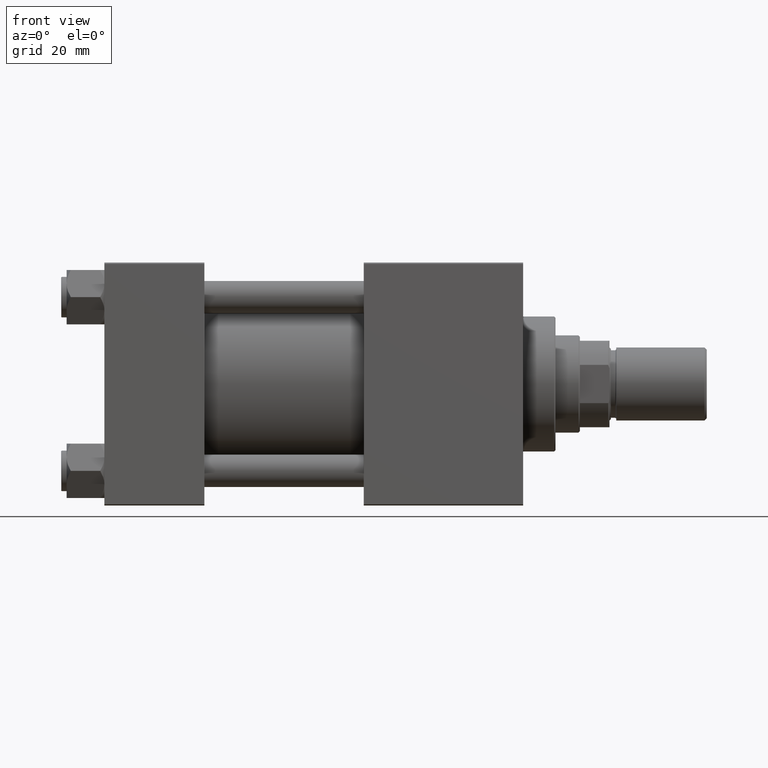
[diagram: clean part render]
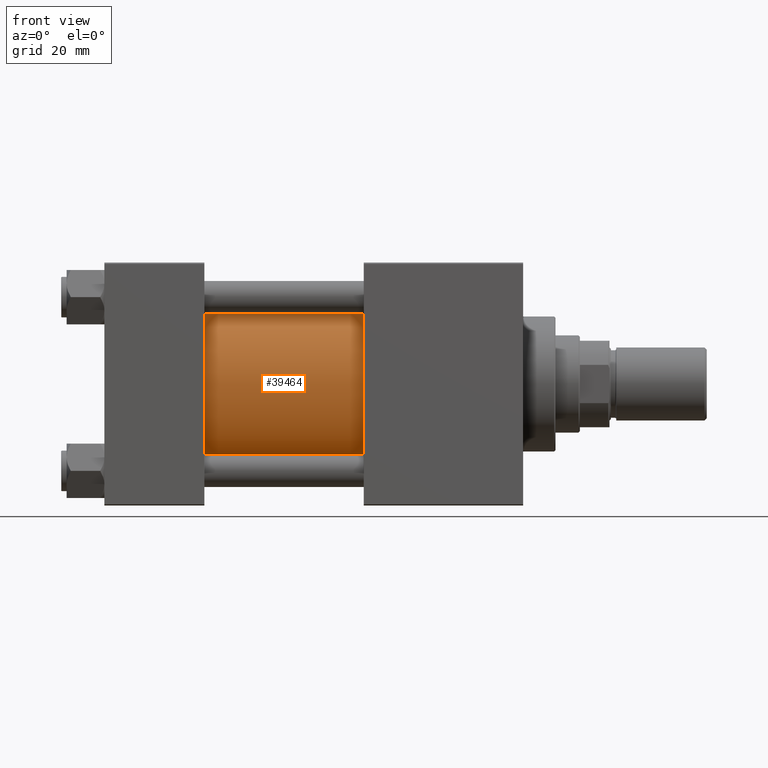
[diagram: same view with one face highlighted and labeled with its STEP entity id]
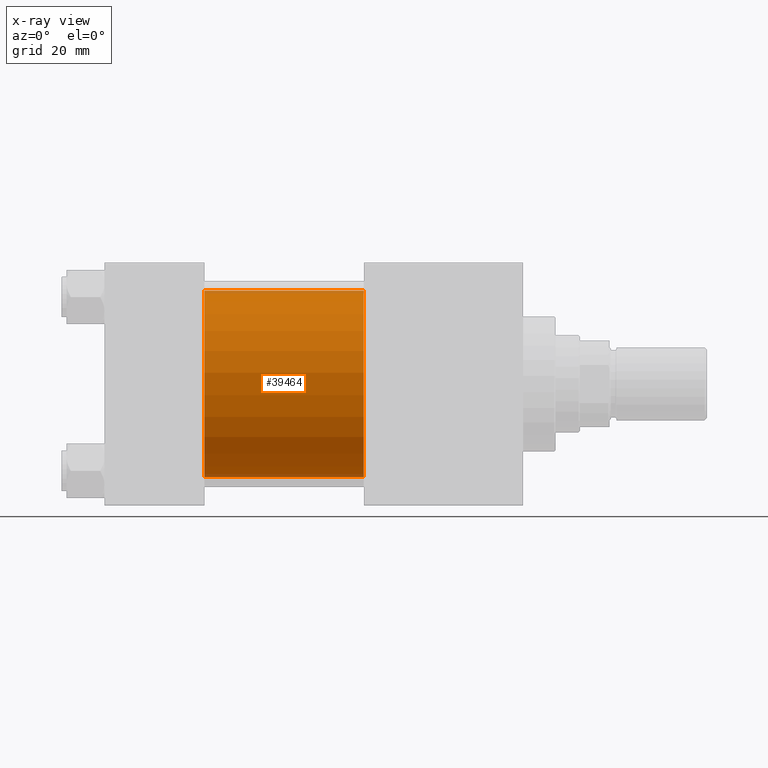
[diagram: x-ray of the same camera — body ghosted, the highlighted face saturated]
A machine part, front view. The second image highlights one B-rep face of the part: STEP entity #39464.
The next image is the same camera in x-ray: the body ghosted, the highlighted face saturated — about 3% of this face is hidden behind the body in this view.
In plain terms, the highlighted cylindrical surface (partial cylindrical patch) has radius 34.5 mm, axis along (-1, -0, -0).
Its self-contained STEP definition (entity closure, byte-faithful):
#275 = CARTESIAN_POINT ( 'NONE',  ( 37.00000000000000000, 1.622946243093158675E-15, -34.50000000000000000 ) ) ;
#1267 = DIRECTION ( 'NONE',  ( 0.000000000000000000, 0.000000000000000000, 1.000000000000000000 ) ) ;
#3224 = VECTOR ( 'NONE', #19896, 1000.000000000000000 ) ;
#6293 = DIRECTION ( 'NONE',  ( -1.000000000000000000, -0.000000000000000000, -0.000000000000000000 ) ) ;
#6949 = VECTOR ( 'NONE', #6293, 1000.000000000000000 ) ;
#8951 = FACE_OUTER_BOUND ( 'NONE', #43163, .T. ) ;
#10571 = VERTEX_POINT ( 'NONE', #26369 ) ;
#10636 = EDGE_CURVE ( 'NONE', #10571, #35969, #29695, .T. ) ;
#12240 = CARTESIAN_POINT ( 'NONE',  ( 37.00000000000000000, -2.602085213965210642E-15, 0.000000000000000000 ) ) ;
#12311 = ORIENTED_EDGE ( 'NONE', *, *, #39843, .F. ) ;
#13312 = AXIS2_PLACEMENT_3D ( 'NONE', #12240, #43515, #34567 ) ;
#15142 = AXIS2_PLACEMENT_3D ( 'NONE', #24084, #24854, #1267 ) ;
#16045 = LINE ( 'NONE', #39378, #3224 ) ;
#19275 = ORIENTED_EDGE ( 'NONE', *, *, #10636, .T. ) ;
#19896 = DIRECTION ( 'NONE',  ( -1.000000000000000000, -0.000000000000000000, -0.000000000000000000 ) ) ;
#20237 = CYLINDRICAL_SURFACE ( 'NONE', #15142, 34.50000000000000000 ) ;
#24084 = CARTESIAN_POINT ( 'NONE',  ( 96.00000000000000000, -2.602085213965210642E-15, 0.000000000000000000 ) ) ;
#24277 = DIRECTION ( 'NONE',  ( 1.000000000000000000, 0.000000000000000000, 0.000000000000000000 ) ) ;
#24854 = DIRECTION ( 'NONE',  ( -1.000000000000000000, -0.000000000000000000, -0.000000000000000000 ) ) ;
#26169 = ORIENTED_EDGE ( 'NONE', *, *, #31490, .T. ) ;
#26369 = CARTESIAN_POINT ( 'NONE',  ( 37.00000000000000000, -2.602085213965210642E-15, 34.50000000000000000 ) ) ;
#28111 = CARTESIAN_POINT ( 'NONE',  ( 96.00000000000000000, -2.602085213965210642E-15, 0.000000000000000000 ) ) ;
#28623 = VERTEX_POINT ( 'NONE', #33911 ) ;
#29695 = CIRCLE ( 'NONE', #13312, 34.50000000000000000 ) ;
#31490 = EDGE_CURVE ( 'NONE', #42799, #10571, #16045, .T. ) ;
#32721 = LINE ( 'NONE', #44504, #6949 ) ;
#33911 = CARTESIAN_POINT ( 'NONE',  ( 96.00000000000000000, 1.622946243093158675E-15, -34.50000000000000000 ) ) ;
#34187 = AXIS2_PLACEMENT_3D ( 'NONE', #28111, #24277, #36069 ) ;
#34567 = DIRECTION ( 'NONE',  ( 0.000000000000000000, 0.000000000000000000, 1.000000000000000000 ) ) ;
#35969 = VERTEX_POINT ( 'NONE', #275 ) ;
#36069 = DIRECTION ( 'NONE',  ( 0.000000000000000000, 0.000000000000000000, -1.000000000000000000 ) ) ;
#38519 = ORIENTED_EDGE ( 'NONE', *, *, #48070, .F. ) ;
#39378 = CARTESIAN_POINT ( 'NONE',  ( 96.00000000000000000, -2.602085213965210642E-15, 34.50000000000000000 ) ) ;
#39464 = ADVANCED_FACE ( 'NONE', ( #8951 ), #20237, .T. ) ;
#39843 = EDGE_CURVE ( 'NONE', #28623, #35969, #32721, .T. ) ;
#40812 = CARTESIAN_POINT ( 'NONE',  ( 96.00000000000000000, -2.602085213965210642E-15, 34.50000000000000000 ) ) ;
#42325 = CIRCLE ( 'NONE', #34187, 34.50000000000000000 ) ;
#42799 = VERTEX_POINT ( 'NONE', #40812 ) ;
#43163 = EDGE_LOOP ( 'NONE', ( #12311, #38519, #26169, #19275 ) ) ;
#43515 = DIRECTION ( 'NONE',  ( 1.000000000000000000, -0.000000000000000000, 0.000000000000000000 ) ) ;
#44504 = CARTESIAN_POINT ( 'NONE',  ( 96.00000000000000000, 1.622946243093158675E-15, -34.50000000000000000 ) ) ;
#48070 = EDGE_CURVE ( 'NONE', #42799, #28623, #42325, .T. ) ;